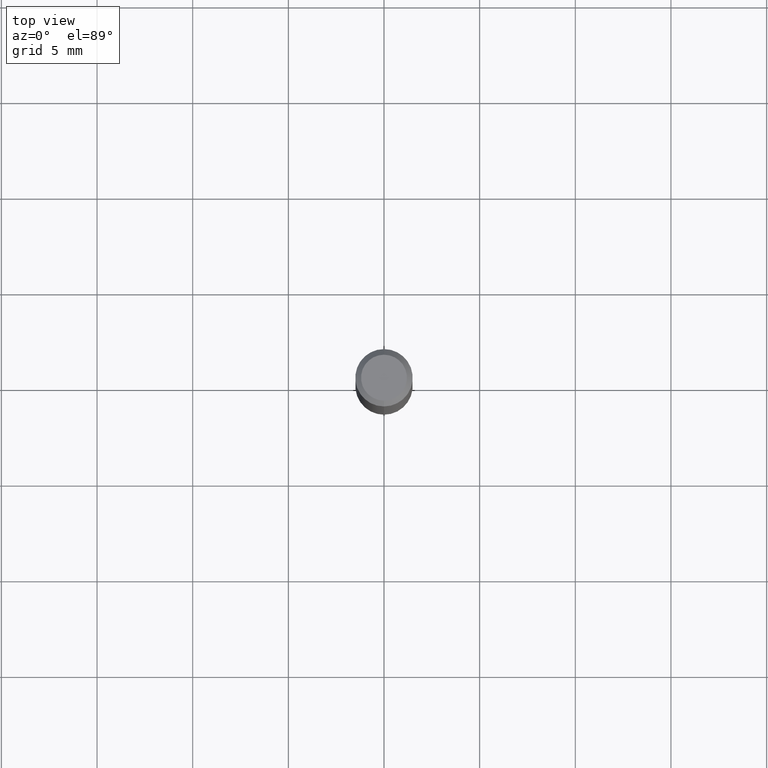
[diagram: clean part render]
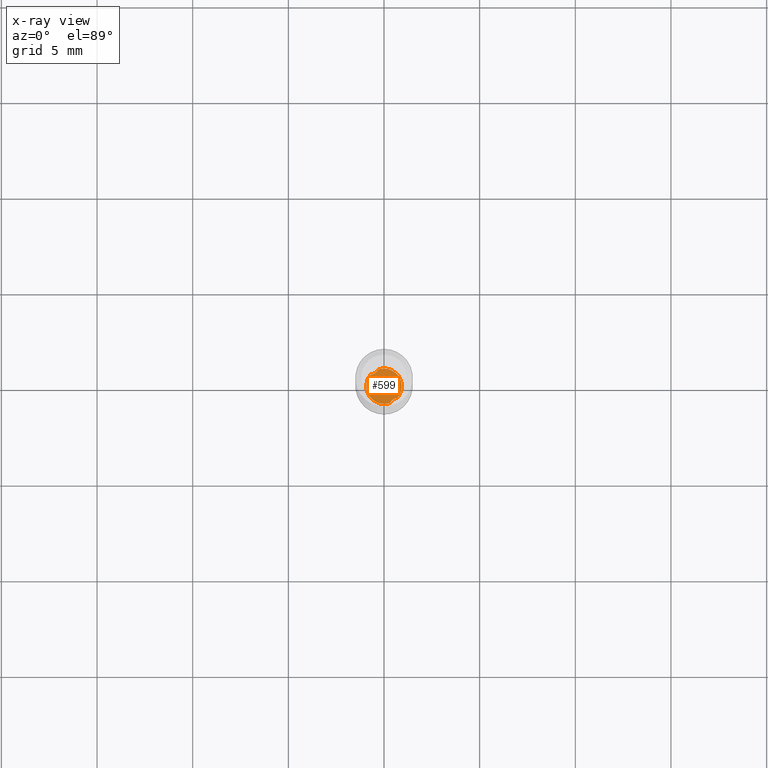
[diagram: x-ray — body ghosted, one internal face saturated and labeled with its STEP entity id]
A machine part, top view, then the same camera in x-ray: the body is ghosted and one INTERNAL B-rep face — a face not visible from any outside direction — is saturated and labeled: STEP entity #599.
In plain terms, the highlighted planar face has unit normal (-0, 0, 1).
Its self-contained STEP definition (entity closure, byte-faithful):
#377=EDGE_CURVE('',#705,#393,#913,.T.);
#393=VERTEX_POINT('',#932);
#447=EDGE_CURVE('',#751,#655,#991,.T.);
#499=EDGE_CURVE('',#543,#655,#1050,.T.);
#533=EDGE_CURVE('',#543,#705,#1091,.T.);
#543=VERTEX_POINT('',#1102);
#599=ADVANCED_FACE('',(#1163),#1164,.T.);
#655=VERTEX_POINT('',#1226);
#705=VERTEX_POINT('',#1278);
#711=EDGE_CURVE('',#753,#393,#1284,.T.);
#713=EDGE_CURVE('',#753,#751,#1286,.T.);
#751=VERTEX_POINT('',#1326);
#753=VERTEX_POINT('',#1328);
#913=CIRCLE('',#2601,0.9249);
#932=CARTESIAN_POINT('',(0.698713419006678,-0.606002943969746,-26.0));
#991=CIRCLE('',#3071,0.9249);
#1050=B_SPLINE_CURVE_WITH_KNOTS('',3,(#3276,#3277,#3278,#3279,#3280,#3281,#3282,#3283,#3284,#3285,#3286,#3287),.UNSPECIFIED.,.F.,.F.,(4,2,2,2,2,4),(0.0,0.207314692201459,0.393536093631527,0.576601139650865,0.726051236458534,0.883797831460432),.UNSPECIFIED.);
#1091=CIRCLE('',#3548,0.9249);
#1102=CARTESIAN_POINT('',(-0.31934759376662,0.868019080640207,-26.0));
#1163=FACE_OUTER_BOUND('',#4027,.T.);
#1164=PLANE('',#4028);
#1226=CARTESIAN_POINT('',(-0.698713419006676,0.606002943969748,-26.0));
#1278=CARTESIAN_POINT('',(-1.1330473057431E-016,0.9249,-26.0));
#1284=B_SPLINE_CURVE_WITH_KNOTS('',3,(#4980,#4981,#4982,#4983,#4984,#4985,#4986,#4987,#4988,#4989,#4990,#4991),.UNSPECIFIED.,.F.,.F.,(4,2,2,2,2,4),(0.0,0.207314692201409,0.39353609363145,0.5766011396508,0.726051236458508,0.883797831460449),.UNSPECIFIED.);
#1286=CIRCLE('',#4994,0.9249);
#1326=CARTESIAN_POINT('',(1.13304730549288E-016,-0.9249,-26.0));
#1328=CARTESIAN_POINT('',(0.319347593766618,-0.868019080640208,-26.0));
#2601=AXIS2_PLACEMENT_3D('',#5338,#5339,#5340);
#3071=AXIS2_PLACEMENT_3D('',#5450,#5451,#5452);
#3276=CARTESIAN_POINT('',(-0.279952778856304,0.974899999999999,-26.0));
#3277=CARTESIAN_POINT('',(-0.297099295843682,0.907956114544094,-26.0));
#3278=CARTESIAN_POINT('',(-0.325937809715548,0.844970205057988,-25.9999999999951));
#3279=CARTESIAN_POINT('',(-0.404638567153465,0.740432261742268,-25.9999999999951));
#3280=CARTESIAN_POINT('',(-0.450761444829249,0.699144585238087,-26.0000000000002));
#3281=CARTESIAN_POINT('',(-0.556813587460451,0.637442839390791,-26.0000000000002));
#3282=CARTESIAN_POINT('',(-0.614563752529447,0.617807990400544,-26.0));
#3283=CARTESIAN_POINT('',(-0.723964569989374,0.601709054754621,-26.0));
#3284=CARTESIAN_POINT('',(-0.773879282348353,0.601777491095869,-26.0));
#3285=CARTESIAN_POINT('',(-0.875254358046916,0.615124340518948,-26.0));
#3286=CARTESIAN_POINT('',(-0.926188567685853,0.629066218090185,-26.0));
#3287=CARTESIAN_POINT('',(-0.9749,0.648802520749939,-26.0));
#3548=AXIS2_PLACEMENT_3D('',#5629,#5630,#5631);
#4027=EDGE_LOOP('',(#5697,#5698,#5699,#5700,#5701,#5702));
#4028=AXIS2_PLACEMENT_3D('',#5703,#5704,#5705);
#4980=CARTESIAN_POINT('',(0.279952778856302,-0.974900000000001,-26.0));
#4981=CARTESIAN_POINT('',(0.297099295843675,-0.907956114544112,-26.0));
#4982=CARTESIAN_POINT('',(0.325937809715537,-0.844970205057992,-25.9999999999951));
#4983=CARTESIAN_POINT('',(0.404638567153466,-0.740432261742255,-25.9999999999951));
#4984=CARTESIAN_POINT('',(0.45076144482925,-0.699144585238082,-26.0000000000002));
#4985=CARTESIAN_POINT('',(0.556813587460451,-0.637442839390785,-26.0000000000002));
#4986=CARTESIAN_POINT('',(0.614563752529457,-0.61780799040054,-26.0));
#4987=CARTESIAN_POINT('',(0.723964569989371,-0.601709054754619,-26.0));
#4988=CARTESIAN_POINT('',(0.773879282348349,-0.601777491095866,-26.0));
#4989=CARTESIAN_POINT('',(0.875254358046916,-0.615124340518945,-26.0));
#4990=CARTESIAN_POINT('',(0.926188567685854,-0.629066218090183,-26.0));
#4991=CARTESIAN_POINT('',(0.9749,-0.648802520749936,-26.0));
#4994=AXIS2_PLACEMENT_3D('',#5807,#5808,#5809);
#5338=CARTESIAN_POINT('',(0.0,0.0,-26.0));
#5339=DIRECTION('',(0.0,0.0,-1.0));
#5340=DIRECTION('',(0.0,1.0,0.0));
#5450=CARTESIAN_POINT('',(0.0,0.0,-26.0));
#5451=DIRECTION('',(0.0,0.0,-1.0));
#5452=DIRECTION('',(0.0,1.0,0.0));
#5629=CARTESIAN_POINT('',(0.0,0.0,-26.0));
#5630=DIRECTION('',(0.0,0.0,-1.0));
#5631=DIRECTION('',(0.0,1.0,0.0));
#5697=ORIENTED_EDGE('',*,*,#711,.T.);
#5698=ORIENTED_EDGE('',*,*,#377,.F.);
#5699=ORIENTED_EDGE('',*,*,#533,.F.);
#5700=ORIENTED_EDGE('',*,*,#499,.T.);
#5701=ORIENTED_EDGE('',*,*,#447,.F.);
#5702=ORIENTED_EDGE('',*,*,#713,.F.);
#5703=CARTESIAN_POINT('',(0.0,0.46245,-26.0));
#5704=DIRECTION('',(-0.0,0.0,1.0));
#5705=DIRECTION('',(0.0,-1.0,0.0));
#5807=CARTESIAN_POINT('',(0.0,0.0,-26.0));
#5808=DIRECTION('',(0.0,0.0,-1.0));
#5809=DIRECTION('',(0.0,1.0,0.0));